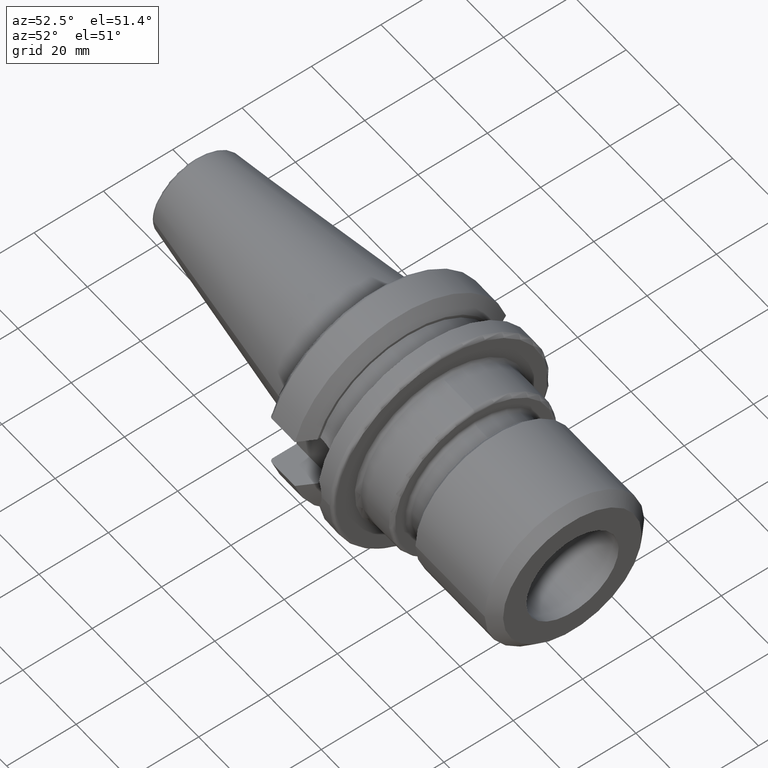
[diagram: clean part render]
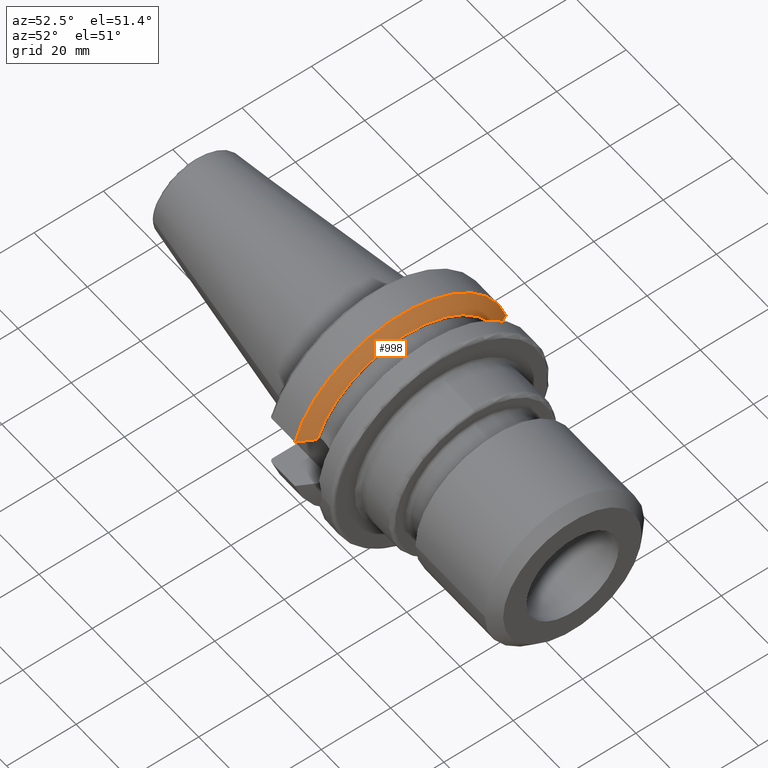
[diagram: same view with one face highlighted and labeled with its STEP entity id]
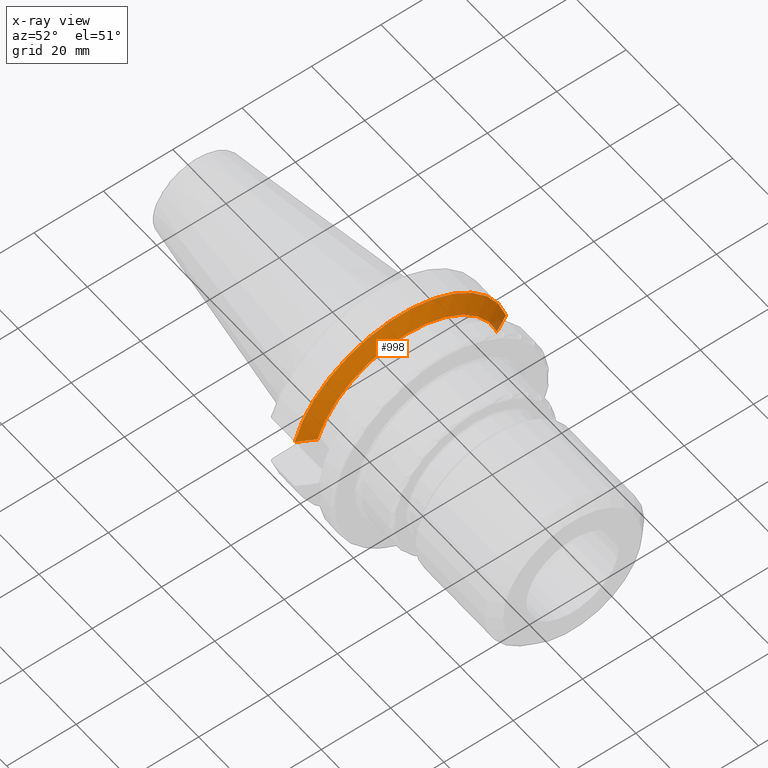
[diagram: x-ray of the same camera — body ghosted, the highlighted face saturated]
A machine part, auxiliary view. The second image highlights one B-rep face of the part: STEP entity #998.
The next image is the same camera in x-ray: the body ghosted, the highlighted face saturated — about 1% of this face is hidden behind the body in this view.
In plain terms, the highlighted conical surface has half-angle 60.125 deg.
Its self-contained STEP definition (entity closure, byte-faithful):
#35=(
BOUNDED_CURVE()
B_SPLINE_CURVE(2,(#1692,#1693,#1694),.UNSPECIFIED.,.F.,.F.)
B_SPLINE_CURVE_WITH_KNOTS((3,3),(0.,0.52358279083281),.UNSPECIFIED.)
CURVE()
GEOMETRIC_REPRESENTATION_ITEM()
RATIONAL_B_SPLINE_CURVE((1.,1.00307360097546,1.))
REPRESENTATION_ITEM('')
);
#38=(
BOUNDED_CURVE()
B_SPLINE_CURVE(2,(#1852,#1853,#1854),.UNSPECIFIED.,.F.,.F.)
B_SPLINE_CURVE_WITH_KNOTS((3,3),(0.,0.52358279083281),.UNSPECIFIED.)
CURVE()
GEOMETRIC_REPRESENTATION_ITEM()
RATIONAL_B_SPLINE_CURVE((1.,1.00307360097546,1.))
REPRESENTATION_ITEM('')
);
#63=CONICAL_SURFACE('',#1186,29.2970358274569,1.0493792127616);
#261=FACE_OUTER_BOUND('',#328,.T.);
#328=EDGE_LOOP('',(#872,#873,#874,#875));
#403=CIRCLE('',#1185,31.5000000000001);
#404=CIRCLE('',#1187,27.0940716549138);
#459=VERTEX_POINT('',#1689);
#460=VERTEX_POINT('',#1691);
#491=VERTEX_POINT('',#1849);
#492=VERTEX_POINT('',#1851);
#565=EDGE_CURVE('',#460,#459,#35,.T.);
#610=EDGE_CURVE('',#492,#491,#38,.T.);
#631=EDGE_CURVE('',#491,#460,#403,.T.);
#632=EDGE_CURVE('',#492,#459,#404,.T.);
#872=ORIENTED_EDGE('',*,*,#565,.T.);
#873=ORIENTED_EDGE('',*,*,#632,.F.);
#874=ORIENTED_EDGE('',*,*,#610,.T.);
#875=ORIENTED_EDGE('',*,*,#631,.T.);
#998=ADVANCED_FACE('',(#261),#63,.T.);
#1185=AXIS2_PLACEMENT_3D('',#1895,#1462,#1463);
#1186=AXIS2_PLACEMENT_3D('',#1896,#1464,#1465);
#1187=AXIS2_PLACEMENT_3D('',#1897,#1466,#1467);
#1462=DIRECTION('center_axis',(1.,0.,0.));
#1463=DIRECTION('ref_axis',(0.,0.,-1.));
#1464=DIRECTION('center_axis',(-1.,0.,0.));
#1465=DIRECTION('ref_axis',(0.,1.,0.));
#1466=DIRECTION('center_axis',(1.,0.,0.));
#1467=DIRECTION('ref_axis',(0.,0.,-1.));
#1689=CARTESIAN_POINT('',(14.1,-25.8705666509569,8.05));
#1691=CARTESIAN_POINT('',(11.5690363073382,-30.4540227227866,8.05));
#1692=CARTESIAN_POINT('Ctrl Pts',(11.5690363073382,-30.4540227227866,8.05));
#1693=CARTESIAN_POINT('Ctrl Pts',(12.9374976962938,-27.989970265181,8.05));
#1694=CARTESIAN_POINT('Ctrl Pts',(14.1,-25.8705666509569,8.05));
#1849=CARTESIAN_POINT('',(11.5690363073382,30.4540227227866,8.05));
#1851=CARTESIAN_POINT('',(14.1,25.8705666509569,8.05));
#1852=CARTESIAN_POINT('Ctrl Pts',(14.1,25.8705666509569,8.05));
#1853=CARTESIAN_POINT('Ctrl Pts',(12.9374976962938,27.989970265181,8.05));
#1854=CARTESIAN_POINT('Ctrl Pts',(11.5690363073382,30.4540227227866,8.05));
#1895=CARTESIAN_POINT('Origin',(11.5690363073382,0.,0.));
#1896=CARTESIAN_POINT('Origin',(12.8345181536691,0.,0.));
#1897=CARTESIAN_POINT('Origin',(14.1,0.,0.));